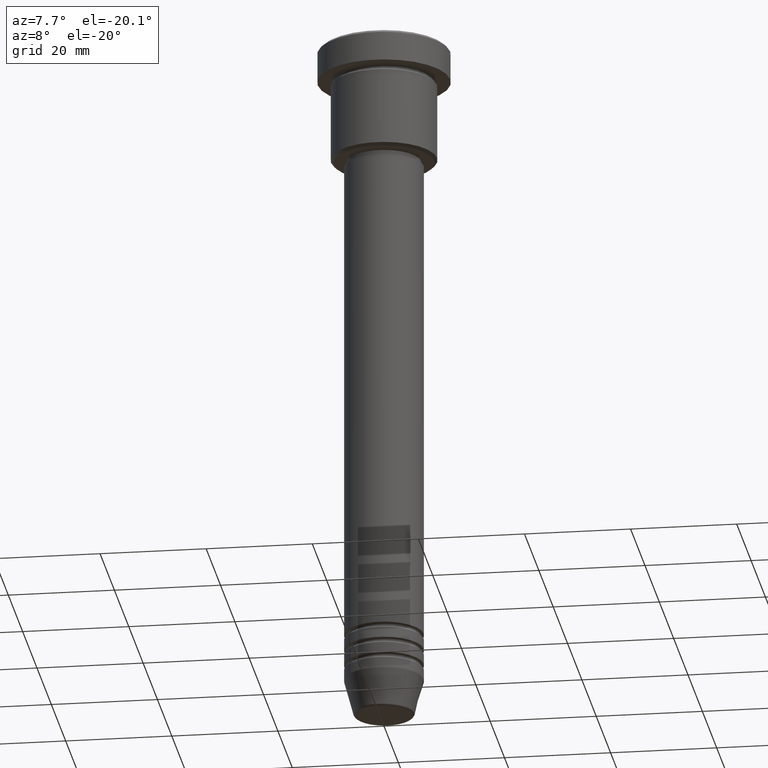
[diagram: clean part render]
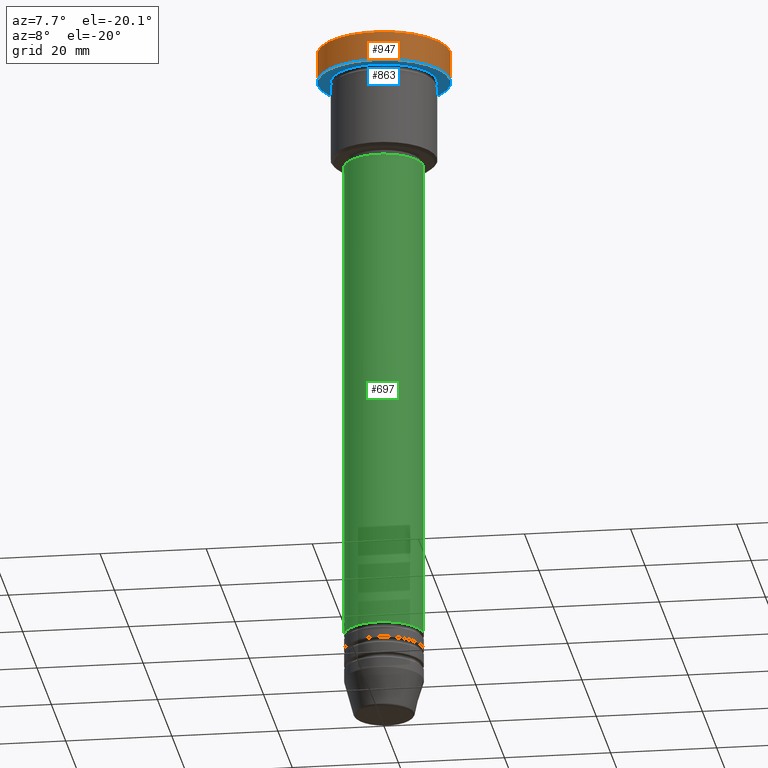
[diagram: same view with three faces highlighted in distinct colors, each labeled with its STEP entity id]
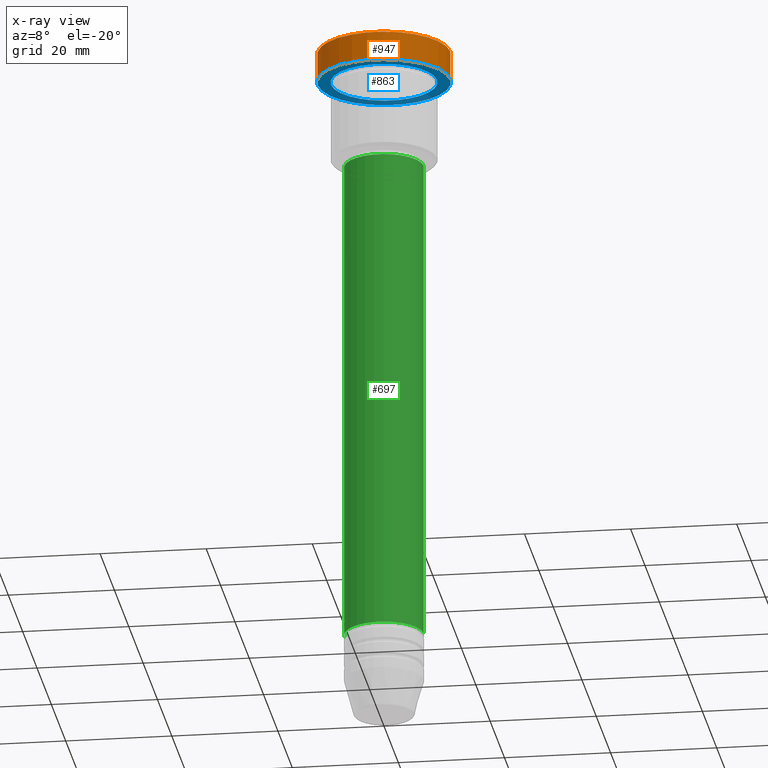
[diagram: x-ray of the same camera — body ghosted, the three highlighted faces saturated]
A machine part, auxiliary view with three faces highlighted in distinct colors.
The next image is the same camera in x-ray (body ghosted, the three faces saturated) — at least one of them is partly hidden behind the body in this view.
Their STEP definitions:

[orange] entity #947 — the highlighted cylindrical surface (partial cylindrical patch) has radius 12.5 mm, axis along (-0, -0, 1).
#29 = CIRCLE ( 'NONE', #772, 12.50000000000000000 ) ;
#37 = CARTESIAN_POINT ( 'NONE',  ( 0.000000000000000000, 0.000000000000000000, 0.000000000000000000 ) ) ;
#56 = AXIS2_PLACEMENT_3D ( 'NONE', #554, #928, #116 ) ;
#83 = VECTOR ( 'NONE', #919, 1000.000000000000000 ) ;
#94 = ORIENTED_EDGE ( 'NONE', *, *, #262, .T. ) ;
#116 = DIRECTION ( 'NONE',  ( 1.000000000000000000, 0.000000000000000000, 0.000000000000000000 ) ) ;
#180 = VERTEX_POINT ( 'NONE', #1071 ) ;
#184 = CARTESIAN_POINT ( 'NONE',  ( -12.50000000000000000, 1.530808498934191521E-15, 0.000000000000000000 ) ) ;
#234 = DIRECTION ( 'NONE',  ( -0.000000000000000000, -0.000000000000000000, 1.000000000000000000 ) ) ;
#262 = EDGE_CURVE ( 'NONE', #180, #843, #788, .T. ) ;
#269 = ORIENTED_EDGE ( 'NONE', *, *, #365, .F. ) ;
#365 = EDGE_CURVE ( 'NONE', #959, #843, #544, .T. ) ;
#446 = CARTESIAN_POINT ( 'NONE',  ( 12.50000000000000000, 0.000000000000000000, -5.999999999999996447 ) ) ;
#472 = ORIENTED_EDGE ( 'NONE', *, *, #952, .T. ) ;
#497 = CARTESIAN_POINT ( 'NONE',  ( -12.50000000000000000, 1.530808498934191521E-15, -0.4999999999999640288 ) ) ;
#529 = CARTESIAN_POINT ( 'NONE',  ( 12.50000000000000000, 0.000000000000000000, 0.000000000000000000 ) ) ;
#544 = LINE ( 'NONE', #184, #83 ) ;
#554 = CARTESIAN_POINT ( 'NONE',  ( 0.000000000000000000, 0.000000000000000000, -0.4999999999999640288 ) ) ;
#575 = EDGE_CURVE ( 'NONE', #1007, #180, #622, .T. ) ;
#594 = ORIENTED_EDGE ( 'NONE', *, *, #575, .T. ) ;
#622 = LINE ( 'NONE', #529, #633 ) ;
#633 = VECTOR ( 'NONE', #976, 1000.000000000000000 ) ;
#674 = EDGE_LOOP ( 'NONE', ( #269, #472, #594, #94 ) ) ;
#675 = CARTESIAN_POINT ( 'NONE',  ( 0.000000000000000000, 0.000000000000000000, -5.999999999999996447 ) ) ;
#762 = CYLINDRICAL_SURFACE ( 'NONE', #870, 12.50000000000000000 ) ;
#772 = AXIS2_PLACEMENT_3D ( 'NONE', #675, #234, #1043 ) ;
#788 = CIRCLE ( 'NONE', #56, 12.50000000000000000 ) ;
#843 = VERTEX_POINT ( 'NONE', #497 ) ;
#870 = AXIS2_PLACEMENT_3D ( 'NONE', #37, #1132, #1125 ) ;
#919 = DIRECTION ( 'NONE',  ( -0.000000000000000000, -0.000000000000000000, 1.000000000000000000 ) ) ;
#928 = DIRECTION ( 'NONE',  ( 0.000000000000000000, 0.000000000000000000, -1.000000000000000000 ) ) ;
#947 = ADVANCED_FACE ( 'NONE', ( #950 ), #762, .T. ) ;
#950 = FACE_OUTER_BOUND ( 'NONE', #674, .T. ) ;
#952 = EDGE_CURVE ( 'NONE', #959, #1007, #29, .T. ) ;
#959 = VERTEX_POINT ( 'NONE', #1147 ) ;
#976 = DIRECTION ( 'NONE',  ( -0.000000000000000000, -0.000000000000000000, 1.000000000000000000 ) ) ;
#1007 = VERTEX_POINT ( 'NONE', #446 ) ;
#1043 = DIRECTION ( 'NONE',  ( 1.000000000000000000, 0.000000000000000000, 0.000000000000000000 ) ) ;
#1071 = CARTESIAN_POINT ( 'NONE',  ( 12.50000000000000000, 0.000000000000000000, -0.4999999999999640288 ) ) ;
#1125 = DIRECTION ( 'NONE',  ( 1.000000000000000000, 0.000000000000000000, 0.000000000000000000 ) ) ;
#1132 = DIRECTION ( 'NONE',  ( -0.000000000000000000, -0.000000000000000000, 1.000000000000000000 ) ) ;
#1147 = CARTESIAN_POINT ( 'NONE',  ( -12.50000000000000000, 1.530808498934191521E-15, -5.999999999999996447 ) ) ;

[blue] entity #863 — the highlighted planar face has unit normal (0, 0, -1).
#29 = CIRCLE ( 'NONE', #772, 12.50000000000000000 ) ;
#97 = ORIENTED_EDGE ( 'NONE', *, *, #952, .F. ) ;
#105 = AXIS2_PLACEMENT_3D ( 'NONE', #566, #120, #852 ) ;
#120 = DIRECTION ( 'NONE',  ( 0.000000000000000000, 0.000000000000000000, -1.000000000000000000 ) ) ;
#134 = CARTESIAN_POINT ( 'NONE',  ( -10.00000000000000000, 0.000000000000000000, -5.999999999999996447 ) ) ;
#181 = CARTESIAN_POINT ( 'NONE',  ( 0.000000000000000000, 0.000000000000000000, -5.999999999999996447 ) ) ;
#229 = CARTESIAN_POINT ( 'NONE',  ( 0.000000000000000000, 0.000000000000000000, -5.999999999999996447 ) ) ;
#234 = DIRECTION ( 'NONE',  ( -0.000000000000000000, -0.000000000000000000, 1.000000000000000000 ) ) ;
#270 = DIRECTION ( 'NONE',  ( -0.000000000000000000, -0.000000000000000000, 1.000000000000000000 ) ) ;
#319 = FACE_OUTER_BOUND ( 'NONE', #340, .T. ) ;
#340 = EDGE_LOOP ( 'NONE', ( #702, #97 ) ) ;
#353 = CIRCLE ( 'NONE', #964, 10.00000000000000000 ) ;
#357 = DIRECTION ( 'NONE',  ( 1.000000000000000000, 0.000000000000000000, 0.000000000000000000 ) ) ;
#387 = ORIENTED_EDGE ( 'NONE', *, *, #506, .T. ) ;
#389 = CIRCLE ( 'NONE', #885, 10.00000000000000000 ) ;
#418 = DIRECTION ( 'NONE',  ( -1.000000000000000000, 0.000000000000000000, 0.000000000000000000 ) ) ;
#446 = CARTESIAN_POINT ( 'NONE',  ( 12.50000000000000000, 0.000000000000000000, -5.999999999999996447 ) ) ;
#454 = DIRECTION ( 'NONE',  ( -0.000000000000000000, -0.000000000000000000, 1.000000000000000000 ) ) ;
#502 = CIRCLE ( 'NONE', #1169, 12.50000000000000000 ) ;
#506 = EDGE_CURVE ( 'NONE', #561, #512, #389, .T. ) ;
#511 = CARTESIAN_POINT ( 'NONE',  ( 10.00000000000000000, 1.224646799147353256E-15, -5.999999999999996447 ) ) ;
#512 = VERTEX_POINT ( 'NONE', #134 ) ;
#536 = EDGE_LOOP ( 'NONE', ( #765, #387 ) ) ;
#561 = VERTEX_POINT ( 'NONE', #511 ) ;
#566 = CARTESIAN_POINT ( 'NONE',  ( 0.000000000000000000, 12.50000000000000000, -5.999999999999996447 ) ) ;
#634 = DIRECTION ( 'NONE',  ( -1.000000000000000000, 0.000000000000000000, 0.000000000000000000 ) ) ;
#675 = CARTESIAN_POINT ( 'NONE',  ( 0.000000000000000000, 0.000000000000000000, -5.999999999999996447 ) ) ;
#702 = ORIENTED_EDGE ( 'NONE', *, *, #1122, .F. ) ;
#765 = ORIENTED_EDGE ( 'NONE', *, *, #1084, .T. ) ;
#772 = AXIS2_PLACEMENT_3D ( 'NONE', #675, #234, #1043 ) ;
#852 = DIRECTION ( 'NONE',  ( -1.000000000000000000, 0.000000000000000000, -0.000000000000000000 ) ) ;
#863 = ADVANCED_FACE ( 'NONE', ( #1138, #319 ), #1029, .T. ) ;
#885 = AXIS2_PLACEMENT_3D ( 'NONE', #229, #955, #418 ) ;
#917 = CARTESIAN_POINT ( 'NONE',  ( 0.000000000000000000, 0.000000000000000000, -5.999999999999996447 ) ) ;
#952 = EDGE_CURVE ( 'NONE', #959, #1007, #29, .T. ) ;
#955 = DIRECTION ( 'NONE',  ( -0.000000000000000000, -0.000000000000000000, 1.000000000000000000 ) ) ;
#959 = VERTEX_POINT ( 'NONE', #1147 ) ;
#964 = AXIS2_PLACEMENT_3D ( 'NONE', #181, #454, #634 ) ;
#1007 = VERTEX_POINT ( 'NONE', #446 ) ;
#1029 = PLANE ( 'NONE',  #105 ) ;
#1043 = DIRECTION ( 'NONE',  ( 1.000000000000000000, 0.000000000000000000, 0.000000000000000000 ) ) ;
#1084 = EDGE_CURVE ( 'NONE', #512, #561, #353, .T. ) ;
#1122 = EDGE_CURVE ( 'NONE', #1007, #959, #502, .T. ) ;
#1138 = FACE_BOUND ( 'NONE', #536, .T. ) ;
#1147 = CARTESIAN_POINT ( 'NONE',  ( -12.50000000000000000, 1.530808498934191521E-15, -5.999999999999996447 ) ) ;
#1169 = AXIS2_PLACEMENT_3D ( 'NONE', #917, #270, #357 ) ;

[green] entity #697 — the highlighted cylindrical surface (partial cylindrical patch) has radius 7.5 mm, axis along (-0, -0, 1).
#33 = CARTESIAN_POINT ( 'NONE',  ( 7.500000000000000000, 0.000000000000000000, -115.9999999999999574 ) ) ;
#81 = ORIENTED_EDGE ( 'NONE', *, *, #210, .F. ) ;
#115 = DIRECTION ( 'NONE',  ( -0.000000000000000000, -0.000000000000000000, 1.000000000000000000 ) ) ;
#127 = EDGE_CURVE ( 'NONE', #453, #673, #178, .T. ) ;
#129 = CARTESIAN_POINT ( 'NONE',  ( 0.000000000000000000, 0.000000000000000000, -115.9999999999999574 ) ) ;
#174 = VECTOR ( 'NONE', #539, 1000.000000000000000 ) ;
#177 = AXIS2_PLACEMENT_3D ( 'NONE', #363, #115, #455 ) ;
#178 = LINE ( 'NONE', #335, #174 ) ;
#210 = EDGE_CURVE ( 'NONE', #396, #673, #1035, .T. ) ;
#323 = DIRECTION ( 'NONE',  ( -0.000000000000000000, -0.000000000000000000, 1.000000000000000000 ) ) ;
#335 = CARTESIAN_POINT ( 'NONE',  ( 7.500000000000000000, 0.000000000000000000, 0.000000000000000000 ) ) ;
#363 = CARTESIAN_POINT ( 'NONE',  ( 0.000000000000000000, 0.000000000000000000, 0.000000000000000000 ) ) ;
#396 = VERTEX_POINT ( 'NONE', #856 ) ;
#428 = VERTEX_POINT ( 'NONE', #582 ) ;
#443 = AXIS2_PLACEMENT_3D ( 'NONE', #712, #623, #1085 ) ;
#453 = VERTEX_POINT ( 'NONE', #33 ) ;
#455 = DIRECTION ( 'NONE',  ( 1.000000000000000000, 0.000000000000000000, 0.000000000000000000 ) ) ;
#485 = VECTOR ( 'NONE', #913, 1000.000000000000000 ) ;
#501 = AXIS2_PLACEMENT_3D ( 'NONE', #129, #323, #580 ) ;
#539 = DIRECTION ( 'NONE',  ( -0.000000000000000000, -0.000000000000000000, 1.000000000000000000 ) ) ;
#580 = DIRECTION ( 'NONE',  ( 1.000000000000000000, 0.000000000000000000, 0.000000000000000000 ) ) ;
#582 = CARTESIAN_POINT ( 'NONE',  ( -7.500000000000000000, 9.184850993605147944E-16, -115.9999999999999574 ) ) ;
#623 = DIRECTION ( 'NONE',  ( -0.000000000000000000, -0.000000000000000000, 1.000000000000000000 ) ) ;
#673 = VERTEX_POINT ( 'NONE', #1024 ) ;
#697 = ADVANCED_FACE ( 'NONE', ( #840 ), #932, .T. ) ;
#701 = EDGE_LOOP ( 'NONE', ( #1013, #1104, #731, #81 ) ) ;
#712 = CARTESIAN_POINT ( 'NONE',  ( 0.000000000000000000, 0.000000000000000000, -23.00000000000000000 ) ) ;
#731 = ORIENTED_EDGE ( 'NONE', *, *, #127, .T. ) ;
#840 = FACE_OUTER_BOUND ( 'NONE', #701, .T. ) ;
#856 = CARTESIAN_POINT ( 'NONE',  ( -7.500000000000000000, 9.184850993605147944E-16, -23.00000000000000000 ) ) ;
#913 = DIRECTION ( 'NONE',  ( -0.000000000000000000, -0.000000000000000000, 1.000000000000000000 ) ) ;
#915 = EDGE_CURVE ( 'NONE', #428, #453, #1020, .T. ) ;
#932 = CYLINDRICAL_SURFACE ( 'NONE', #177, 7.500000000000000000 ) ;
#1011 = CARTESIAN_POINT ( 'NONE',  ( -7.500000000000000000, 9.184850993605147944E-16, 0.000000000000000000 ) ) ;
#1013 = ORIENTED_EDGE ( 'NONE', *, *, #1139, .F. ) ;
#1020 = CIRCLE ( 'NONE', #501, 7.500000000000000000 ) ;
#1024 = CARTESIAN_POINT ( 'NONE',  ( 7.500000000000000000, 0.000000000000000000, -23.00000000000000000 ) ) ;
#1035 = CIRCLE ( 'NONE', #443, 7.500000000000000000 ) ;
#1085 = DIRECTION ( 'NONE',  ( 1.000000000000000000, 0.000000000000000000, 0.000000000000000000 ) ) ;
#1104 = ORIENTED_EDGE ( 'NONE', *, *, #915, .T. ) ;
#1139 = EDGE_CURVE ( 'NONE', #428, #396, #1181, .T. ) ;
#1181 = LINE ( 'NONE', #1011, #485 ) ;